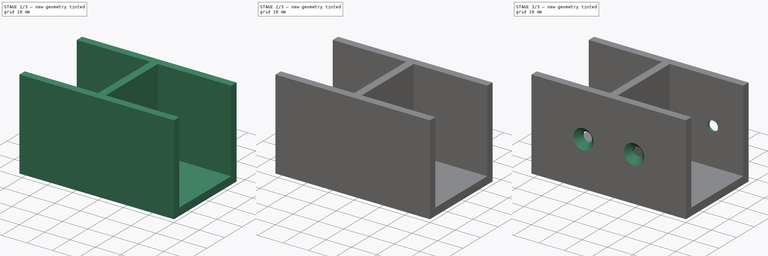
[diagram: build sequence overview — one tinted view per stage of 3, left to right]
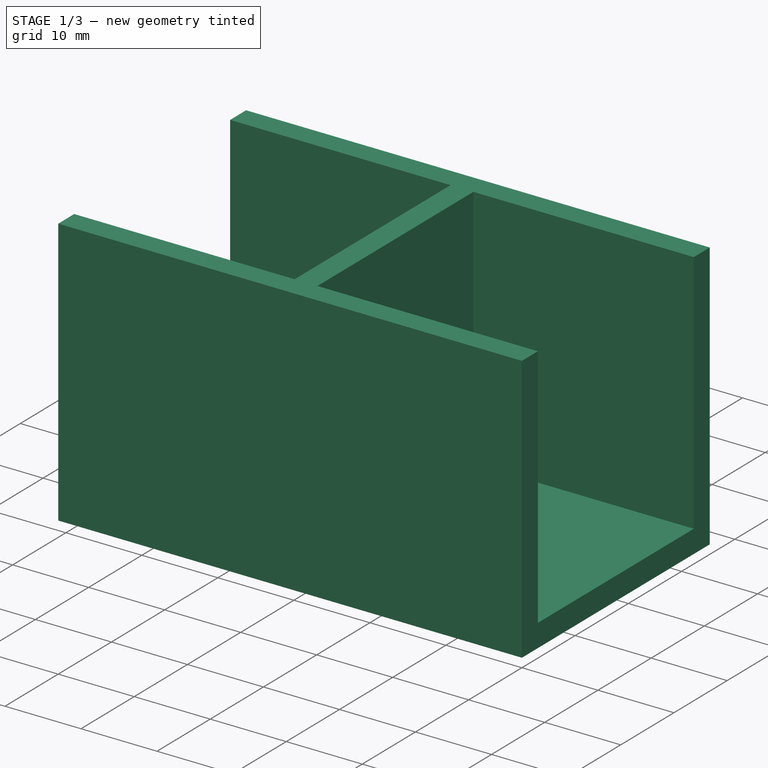
[diagram: stage 1 of 3 — iso view after this stage's code; geometry added in this stage tinted green]
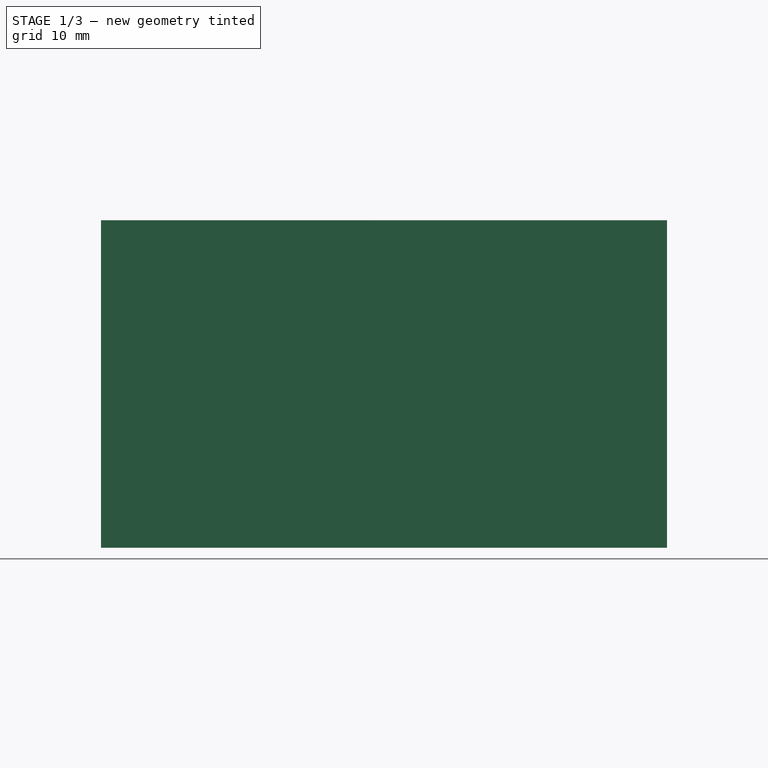
[diagram: stage 1 of 3 — front view after this stage's code; geometry added in this stage tinted green]
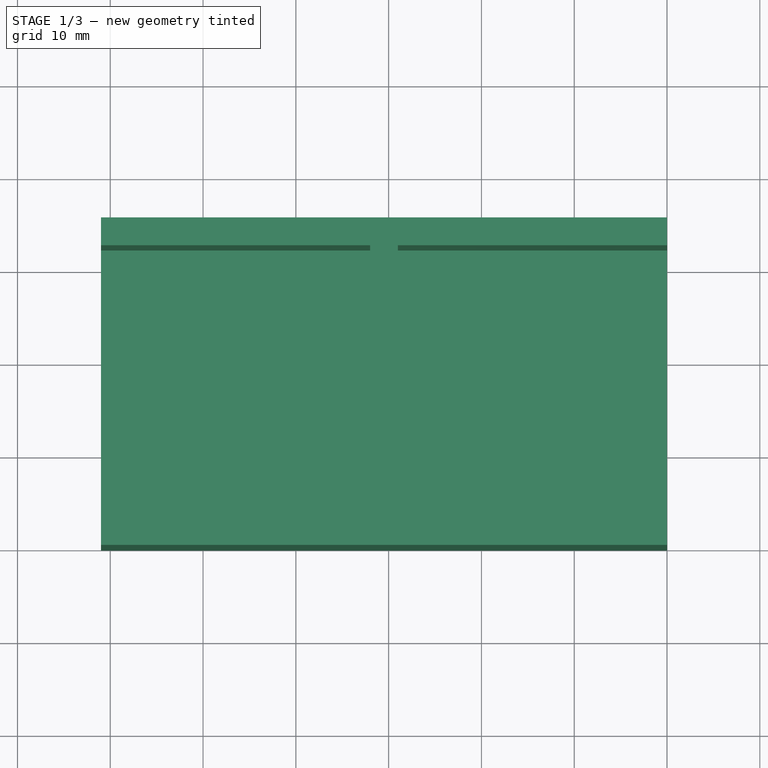
[diagram: stage 1 of 3 — top view after this stage's code; geometry added in this stage tinted green]
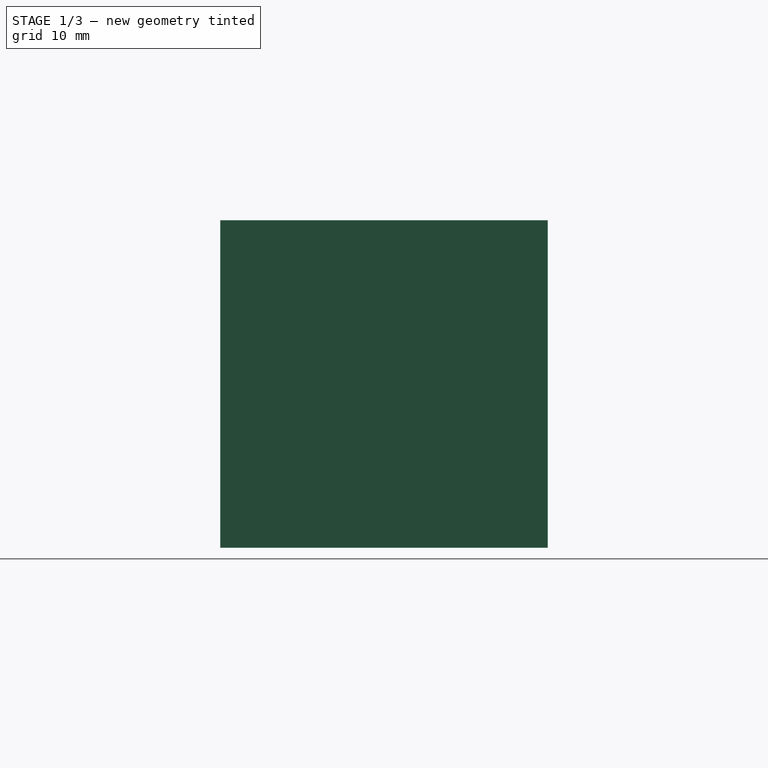
[diagram: stage 1 of 3 — right view after this stage's code; geometry added in this stage tinted green]
FCSTD DOCUMENT  (FreeCAD 1.0R39285 (Git))
Label: 29mm-wood-connector
License: All rights reserved
LicenseURL: https://en.wikipedia.org/wiki/All_rights_reserved
objects: Sketcher::SketchObject×6, PartDesign::Hole×4, App::VarSet×1, PartDesign::Pad×1, PartDesign::Pocket×1, PartDesign::Body×1
note: 31 computed .brp shape members not serialized (recipe doc carries the construction recipe); baked Part::Feature solids carry a one-line shape summary decoded from their .brp

FEATURE [App::VarSet] VarSet
  Base_CounterSinkD = 8
  Base_CounterSinkH = 6
  Base_LegHeaderHeight = 29
  Base_LegHeight = 29
  Base_LegWidth = 29.3
  Base_Screw = 3
  Base_TotalHeight = 61
  Base_TotalWidth = 35.3
  Base_WallThickness = 3
  expr: Base_TotalHeight = Base_LegHeight + Base_LegHeaderHeight + Base_WallThickness
  expr: Base_TotalWidth = Base_LegWidth + 2 * Base_WallThickness
FEATURE [Sketcher::SketchObject] Sketch
  ArcFitTolerance = 1e-06
  AttachmentSupport = -> [XY_Plane]
  FullyConstrained = true
  MakeInternals = false
  MapMode = 5
  expr: Constraints[10] = VarSet.Base_TotalWidth
  expr: Constraints[9] = VarSet.Base_TotalHeight
  sketch-geometry (4):
    g0: LineSegment StartX=0 StartY=0 StartZ=0 EndX=0 EndY=35.3 EndZ=0
    g1: LineSegment StartX=0 StartY=35.3 StartZ=0 EndX=-61 EndY=35.3 EndZ=0
    g2: LineSegment StartX=-61 StartY=35.3 StartZ=0 EndX=-61 EndY=0 EndZ=0
    g3: LineSegment StartX=-61 StartY=0 StartZ=0 EndX=0 EndY=0 EndZ=0
  constraints (11):
    c: Coincident(g0,g1)
    c: Coincident(g1,g2)
    c: Coincident(g2,g3)
    c: Coincident(g3,g0)
    c: Vertical(g0)
    c: Vertical(g2)
    c: Horizontal(g1)
    c: Horizontal(g3)
    c: Coincident(g0,g-1)
    c: DistanceX(g1,g1) = 61
    c: DistanceY(g2,g2) = 35.3
FEATURE [PartDesign::Pad] Pad
  Direction = (0,0,1)
  Length = 35.3
  Length2 = 10
  Profile = -> Sketch
  ReferenceAxis = -> Sketch [N_Axis]
  Refine = true
  Suppressed = false
  Type = 0
  expr: Length = VarSet.Base_TotalWidth
FEATURE [Sketcher::SketchObject] Sketch001
  ArcFitTolerance = 1e-06
  AttachmentSupport = -> [Pad]
  ExternalGeometry = -> [Pad]
  FullyConstrained = true
  MakeInternals = false
  MapMode = 5
  Placement = pos=(0,0,35.3) rot=(0,0,1;0rad)
  expr: Constraints[10] = VarSet.Base_WallThickness
  expr: Constraints[11] = VarSet.Base_WallThickness
  expr: Constraints[9] = VarSet.Base_LegHeaderHeight
  sketch-geometry (8):
    g0: LineSegment StartX=0 StartY=32.3 StartZ=0 EndX=-29 EndY=32.3 EndZ=0
    g1: LineSegment StartX=-29 StartY=32.3 StartZ=0 EndX=-29 EndY=3 EndZ=0
    g2: LineSegment StartX=-29 StartY=3 StartZ=0 EndX=0 EndY=3 EndZ=0
    g3: LineSegment StartX=0 StartY=3 StartZ=0 EndX=0 EndY=32.3 EndZ=0
    g4: LineSegment StartX=-61 StartY=32.3 StartZ=0 EndX=-61 EndY=3 EndZ=0
    g5: LineSegment StartX=-61 StartY=3 StartZ=0 EndX=-32 EndY=3 EndZ=0
    g6: LineSegment StartX=-32 StartY=3 StartZ=0 EndX=-32 EndY=32.3 EndZ=0
    g7: LineSegment StartX=-32 StartY=32.3 StartZ=0 EndX=-61 EndY=32.3 EndZ=0
  constraints (23):
    c: Coincident(g0,g1)
    c: Coincident(g1,g2)
    c: Coincident(g2,g3)
    c: Coincident(g3,g0)
    c: Horizontal(g0)
    c: Horizontal(g2)
    c: Vertical(g1)
    c: Vertical(g3)
    c: PointOnObject(g0,g-2)
    c: DistanceX(g0,g0) = 29
    c: Distance(g-1,g2) = 3
    c: Distance(g0,g-3) = 3
    c: Coincident(g4,g5)
    c: Coincident(g5,g6)
    c: Coincident(g6,g7)
    c: Coincident(g7,g4)
    c: Vertical(g4)
    c: Vertical(g6)
    c: Horizontal(g5)
    c: PointOnObject(g4,g-4)
    c: Equal(g6,g3)
    c: Equal(g7,g0)
    c: Tangent(g7,g0)
FEATURE [Sketcher::SketchObject] Sketch002
  ArcFitTolerance = 1e-06
  AttachmentSupport = -> [Pad]
  ExternalGeometry = -> [Pad]
  FullyConstrained = true
  MakeInternals = false
  MapMode = 5
  Placement = pos=(0,0,0) rot=(1,0,0;3.14159rad)
  expr: Constraints[0] = VarSet.Base_LegHeaderHeight / 2
  expr: Constraints[5] = VarSet.Base_Screw
  sketch-geometry (4):
    g0: Circle CenterX=-14.5 CenterY=-17.65 CenterZ=0 NormalX=0 NormalY=0 NormalZ=1 AngleXU=0 Radius=1.5
    g1: LineSegment [constr] StartX=-14.5 StartY=0 StartZ=0 EndX=-14.5 EndY=-35.3 EndZ=0
    g2: Circle CenterX=-46.5 CenterY=-17.65 CenterZ=0 NormalX=0 NormalY=0 NormalZ=1 AngleXU=0 Radius=1.5
    g3: LineSegment [constr] StartX=-46.5 StartY=0 StartZ=0 EndX=-46.5 EndY=-35.3 EndZ=0
  constraints (12):
    c: Distance(g0,g-2) = 14.5
    c: PointOnObject(g1,g-1)
    c: PointOnObject(g1,g-3)
    c: Vertical(g1)
    c: Symmetric(g1,g1,g0)
    c: Diameter(g0) = 3
    c: Equal(g2,g0)
    c: PointOnObject(g3,g-1)
    c: PointOnObject(g3,g-3)
    c: Vertical(g3)
    c: Symmetric(g3,g3,g2)
    c: DistanceX(g-4,g3) = 14.5
FEATURE [PartDesign::Pocket] Pocket
  BaseFeature = -> Pad
  Direction = (0,0,-1)
  Length = 32.3
  Length2 = 5
  Profile = -> Sketch001
  ReferenceAxis = -> Sketch001 [N_Axis]
  Refine = true
  Suppressed = false
  Type = 0
  expr: Length = VarSet.Base_LegWidth + VarSet.Base_WallThickness
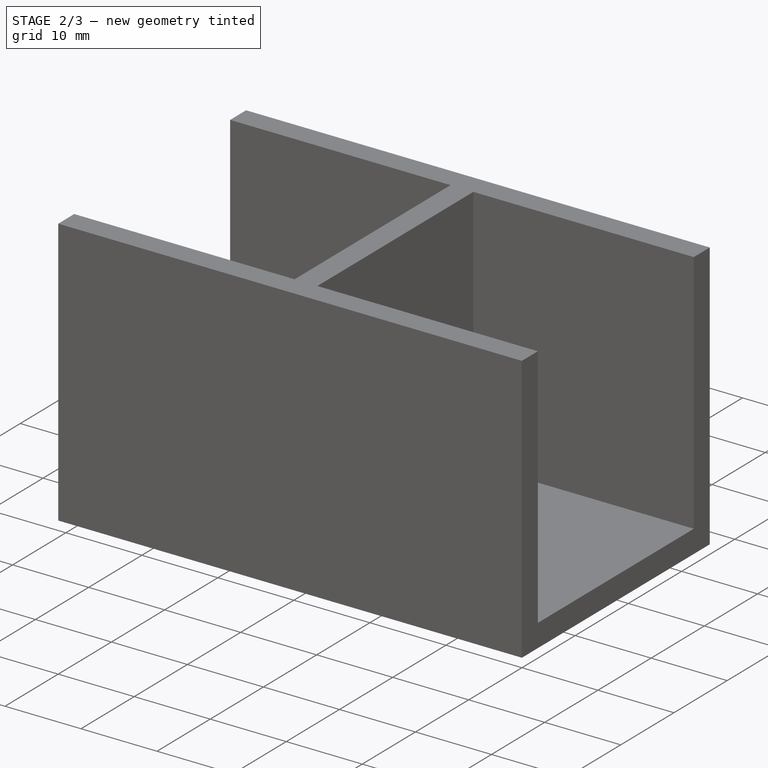
[diagram: stage 2 of 3 — iso view after this stage's code; geometry added in this stage tinted green]
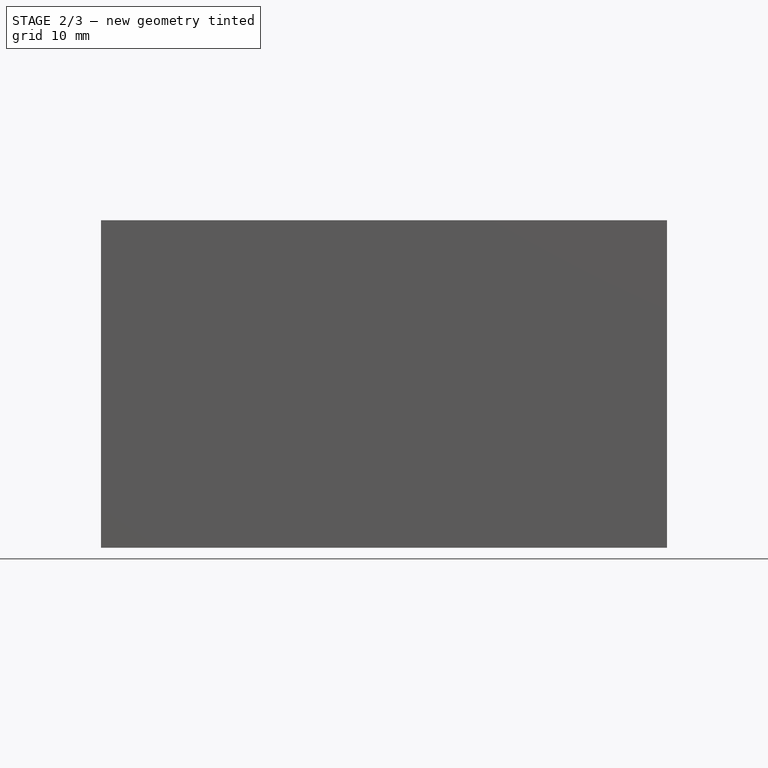
[diagram: stage 2 of 3 — front view after this stage's code; geometry added in this stage tinted green]
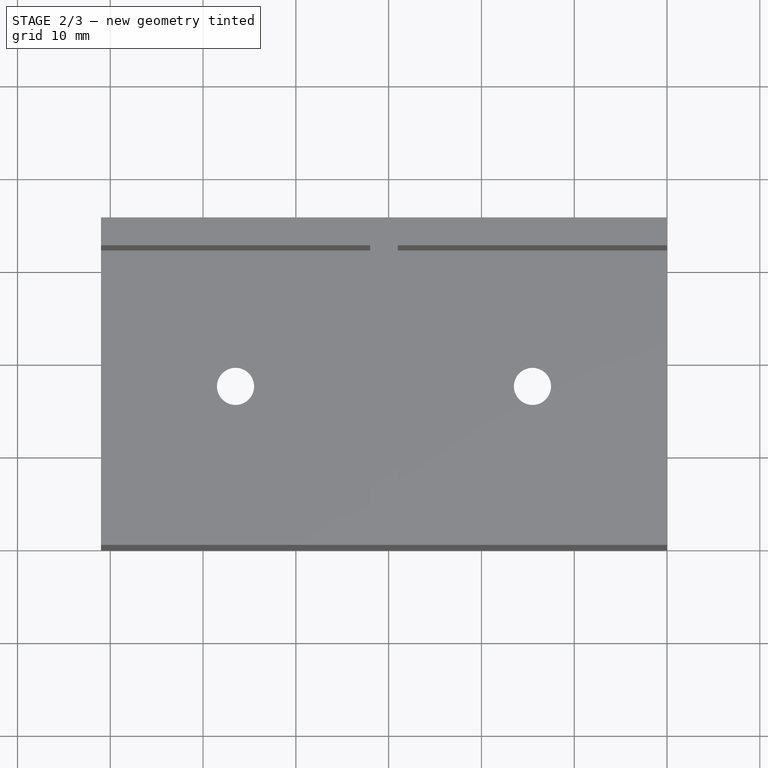
[diagram: stage 2 of 3 — top view after this stage's code; geometry added in this stage tinted green]
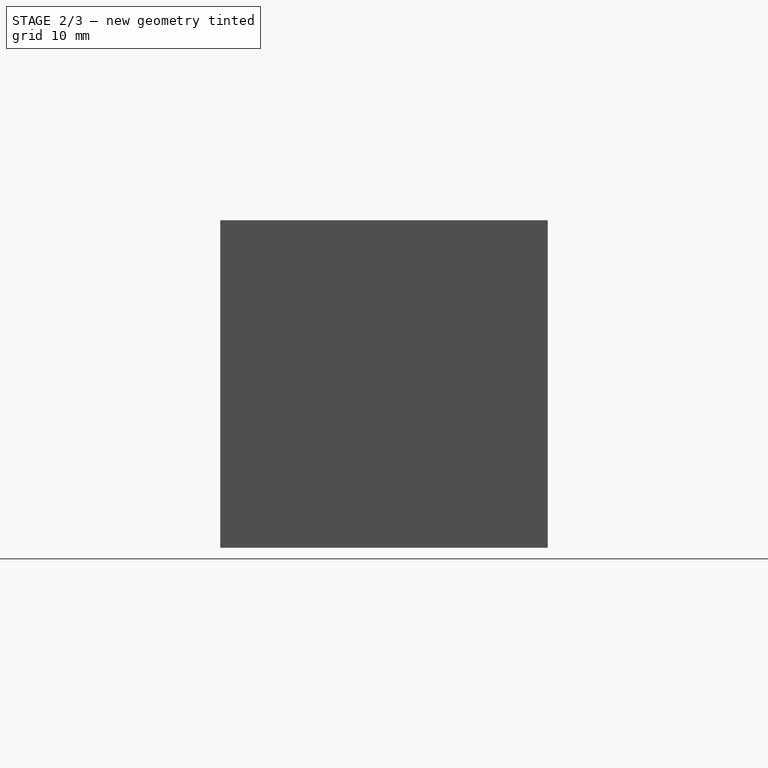
[diagram: stage 2 of 3 — right view after this stage's code; geometry added in this stage tinted green]
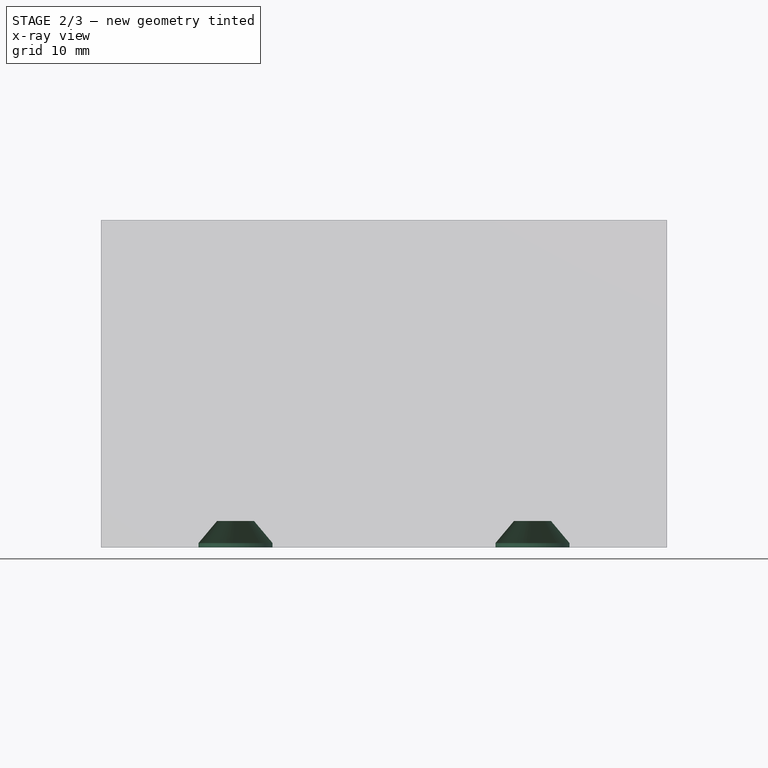
[diagram: stage 2 of 3 — x-ray composite at the front view; earlier geometry ghosted, this stage's added geometry solid]
FEATURE [Sketcher::SketchObject] Sketch004
  ArcFitTolerance = 1e-06
  FullyConstrained = true
  MakeInternals = false
  MapMode = 5
  Placement = pos=(0,0,35.3) rot=(0,0,1;0rad)
  sketch-geometry (1):
    g0: Circle CenterX=-43.65 CenterY=17.65 CenterZ=0 NormalX=0 NormalY=0 NormalZ=1 AngleXU=0 Radius=4
  constraints (2):
    c: Diameter(g0) = 8
    c: Coincident(g0,g-3)
FEATURE [PartDesign::Hole] Hole
  BaseFeature = -> Pocket
  CustomThreadClearance = 0
  Depth = 355.96
  DepthType = 0
  Diameter = 4
  DrillForDepth = false
  DrillPoint = 1
  DrillPointAngle = 118
  HoleCutCountersinkAngle = 80
  HoleCutCustomValues = false
  HoleCutDepth = 0.5
  HoleCutDiameter = 8
  HoleCutType = 3
  ModelThread = false
  Profile = -> Sketch002
  Refine = true
  Suppressed = false
  Tapered = false
  TaperedAngle = 45
  ThreadClass = 0
  ThreadDepth = 355.96
  ThreadDepthType = 0
  ThreadDirection = 0
  ThreadFit = 0
  ThreadSize = 0
  ThreadType = 0
  Threaded = false
  UseCustomThreadClearance = false
  expr: HoleCutDiameter = VarSet.Base_CounterSinkD
FEATURE [PartDesign::Hole] Hole001
  BaseFeature = -> Hole
  CustomThreadClearance = 0
  Depth = 1
  DepthType = 0
  Diameter = 8
  DrillForDepth = false
  DrillPoint = 1
  DrillPointAngle = 118
  HoleCutCountersinkAngle = 90
  HoleCutCustomValues = false
  HoleCutDepth = 0
  HoleCutDiameter = 6.1
  HoleCutType = 0
  ModelThread = false
  Profile = -> Sketch004
  Refine = true
  Suppressed = false
  Tapered = true
  TaperedAngle = 45
  ThreadClass = 0
  ThreadDepth = 1
  ThreadDepthType = 0
  ThreadDirection = 0
  ThreadFit = 0
  ThreadSize = 0
  ThreadType = 0
  Threaded = false
  UseCustomThreadClearance = false
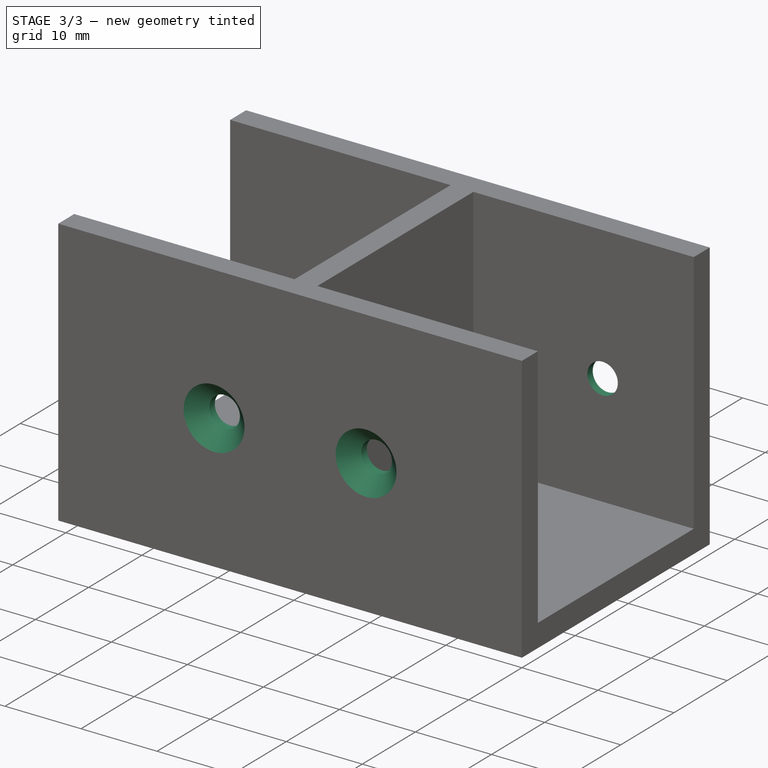
[diagram: stage 3 of 3 — iso view after this stage's code; geometry added in this stage tinted green]
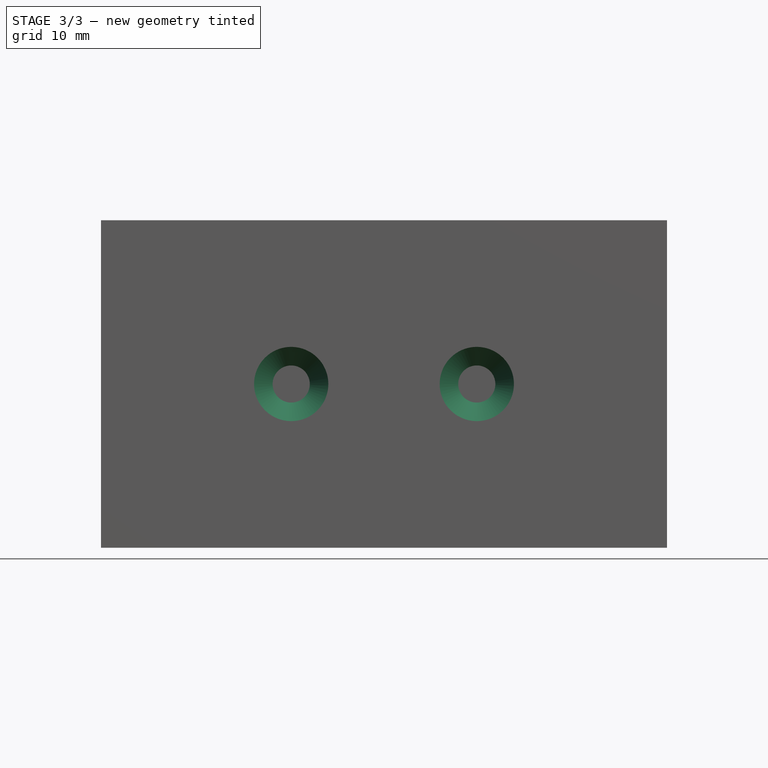
[diagram: stage 3 of 3 — front view after this stage's code; geometry added in this stage tinted green]
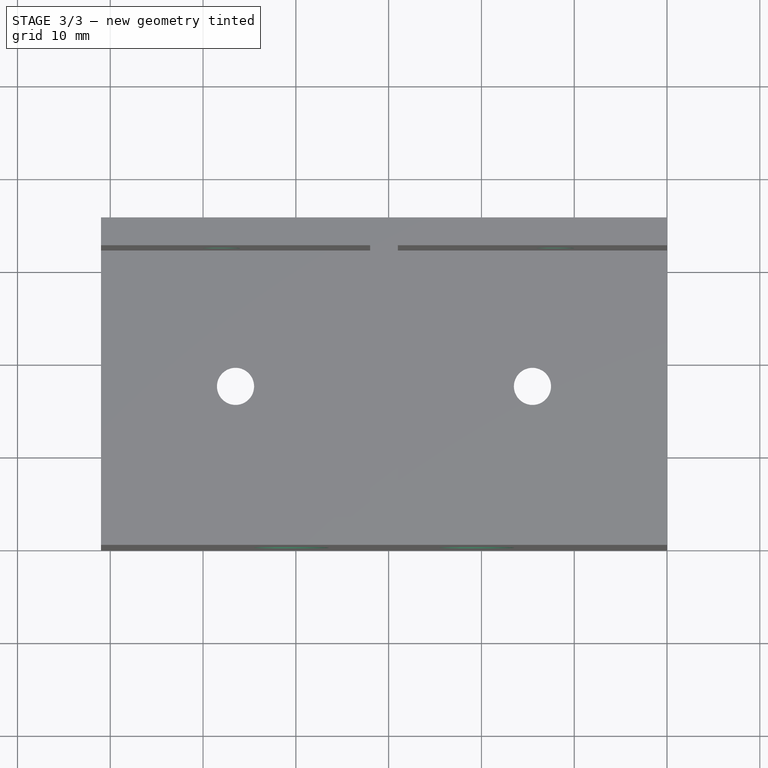
[diagram: stage 3 of 3 — top view after this stage's code; geometry added in this stage tinted green]
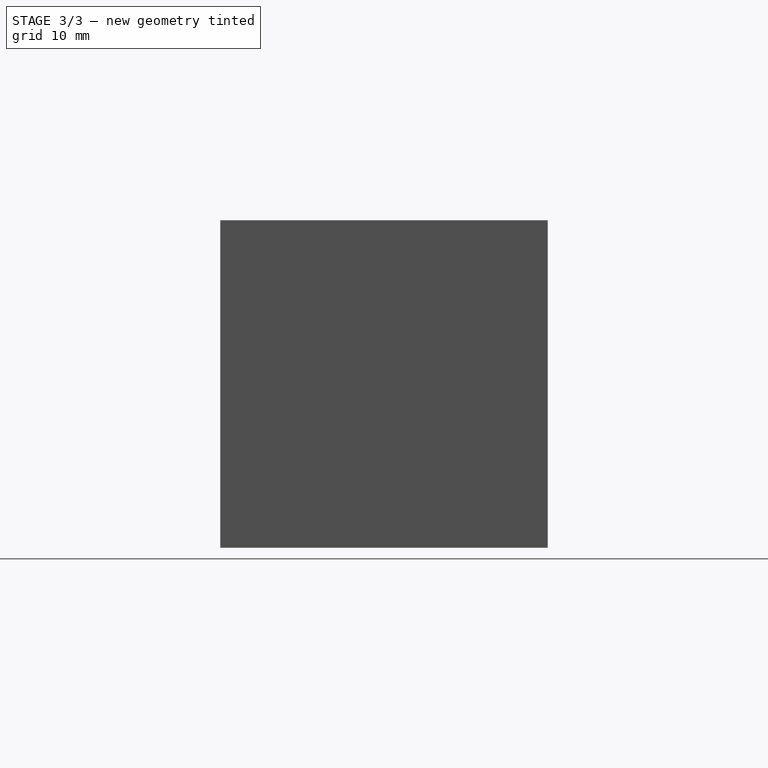
[diagram: stage 3 of 3 — right view after this stage's code; geometry added in this stage tinted green]
FEATURE [Sketcher::SketchObject] Sketch006
  ArcFitTolerance = 1e-06
  AttachmentSupport = -> [Hole001]
  ExternalGeometry = -> [Hole001]
  FullyConstrained = true
  MakeInternals = false
  MapMode = 5
  Placement = pos=(0,35.3,0) rot=(0,0.707107,0.707107;3.14159rad)
  sketch-geometry (5):
    g0: GeomPoint X=12 Y=17.65 Z=0
    g1: LineSegment [constr] StartX=12 StartY=35.3 StartZ=0 EndX=12 EndY=0 EndZ=0
    g2: Circle CenterX=12 CenterY=17.65 CenterZ=0 NormalX=0 NormalY=0 NormalZ=1 AngleXU=0 Radius=1.5
    g3: Circle CenterX=48 CenterY=17.65 CenterZ=0 NormalX=0 NormalY=0 NormalZ=1 AngleXU=0 Radius=1.5
    g4: LineSegment [constr] StartX=48 StartY=35.3 StartZ=0 EndX=48 EndY=0 EndZ=0
  constraints (13):
    c: PointOnObject(g1,g-3)
    c: PointOnObject(g1,g-4)
    c: Vertical(g1)
    c: Symmetric(g1,g1,g0)
    c: Distance(g0,g-5) = 12
    c: Diameter(g2) = 3
    c: Coincident(g2,g0)
    c: Equal(g3,g2)
    c: PointOnObject(g4,g-3)
    c: PointOnObject(g4,g-4)
    c: Vertical(g4)
    c: Symmetric(g4,g4,g3)
    c: Distance(g-4,g4) = 13
FEATURE [PartDesign::Hole] Hole002
  BaseFeature = -> Hole001
  CustomThreadClearance = 0
  Depth = 25
  DepthType = 0
  Diameter = 4
  DrillForDepth = false
  DrillPoint = 1
  DrillPointAngle = 118
  HoleCutCountersinkAngle = 90
  HoleCutCustomValues = false
  HoleCutDepth = 0
  HoleCutDiameter = 8
  HoleCutType = 2
  ModelThread = false
  Profile = -> Sketch006
  Refine = true
  Suppressed = false
  Tapered = false
  TaperedAngle = 90
  ThreadClass = 0
  ThreadDepth = 25
  ThreadDepthType = 0
  ThreadDirection = 0
  ThreadFit = 0
  ThreadSize = 0
  ThreadType = 0
  Threaded = false
  UseCustomThreadClearance = false
FEATURE [Sketcher::SketchObject] Sketch007
  ArcFitTolerance = 1e-06
  AttachmentSupport = -> [Hole002]
  ExternalGeometry = -> [Hole002]
  FullyConstrained = true
  MakeInternals = false
  MapMode = 5
  Placement = pos=(0,0,0) rot=(1,0,0;1.5708rad)
  sketch-geometry (4):
    g0: LineSegment [constr] StartX=-30.5 StartY=35.3 StartZ=0 EndX=-30.5 EndY=0 EndZ=0
    g1: Circle CenterX=-20.5 CenterY=17.65 CenterZ=0 NormalX=0 NormalY=0 NormalZ=1 AngleXU=0 Radius=1.5
    g2: Circle CenterX=-40.5 CenterY=17.65 CenterZ=0 NormalX=0 NormalY=0 NormalZ=1 AngleXU=0 Radius=1.5
    g3: LineSegment [constr] StartX=-20.5 StartY=35.3 StartZ=0 EndX=-20.5 EndY=0 EndZ=0
  constraints (10):
    c: Symmetric(g-3,g-3,g0)
    c: Symmetric(g-4,g-4,g0)
    c: Diameter(g1) = 3
    c: Equal(g2,g1)
    c: Symmetric(g1,g2,g0)
    c: PointOnObject(g3,g-3)
    c: PointOnObject(g3,g-4)
    c: Vertical(g3)
    c: Symmetric(g3,g3,g1)
    c: Distance(g3,g0) = 10
FEATURE [PartDesign::Hole] Hole003
  BaseFeature = -> Hole002
  CustomThreadClearance = 0
  Depth = 25
  DepthType = 0
  Diameter = 4
  DrillForDepth = false
  DrillPoint = 1
  DrillPointAngle = 118
  HoleCutCountersinkAngle = 90
  HoleCutCustomValues = false
  HoleCutDepth = 0
  HoleCutDiameter = 8
  HoleCutType = 2
  ModelThread = false
  Profile = -> Sketch007
  Refine = true
  Suppressed = false
  Tapered = false
  TaperedAngle = 90
  ThreadClass = 0
  ThreadDepth = 25
  ThreadDepthType = 0
  ThreadDirection = 0
  ThreadFit = 0
  ThreadSize = 0
  ThreadType = 0
  Threaded = false
  UseCustomThreadClearance = false
FEATURE [PartDesign::Body] Body
  AllowCompound = false
  Group = -> [Sketch,Pad,Sketch001,Sketch002,Pocket,Hole,Sketch004,Hole001,Sketch006,Hole002,Sketch007,Hole003]
  Origin = -> Origin
  Tip = -> Hole003
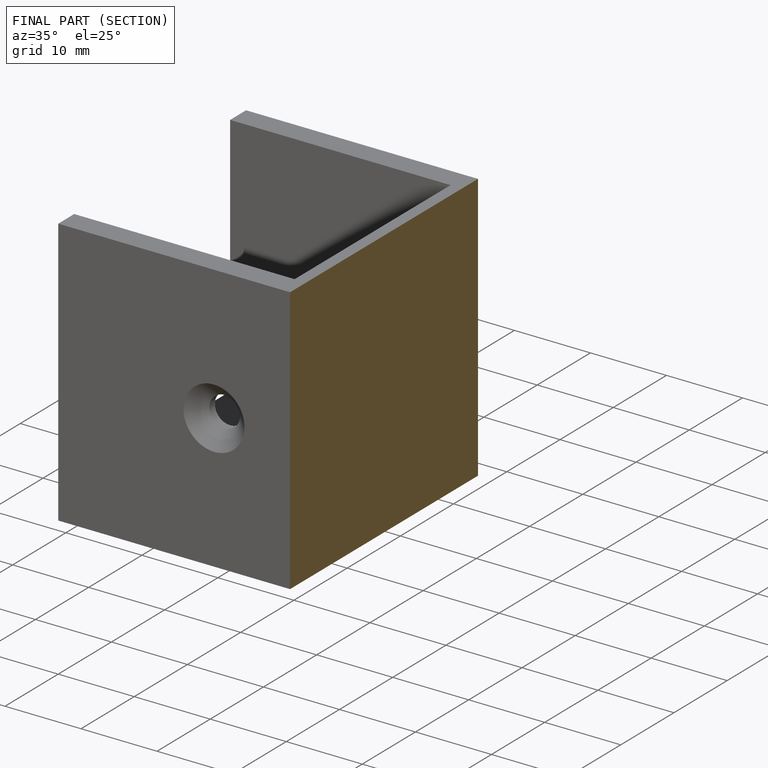
[diagram: finished part — half-section view (interior)]
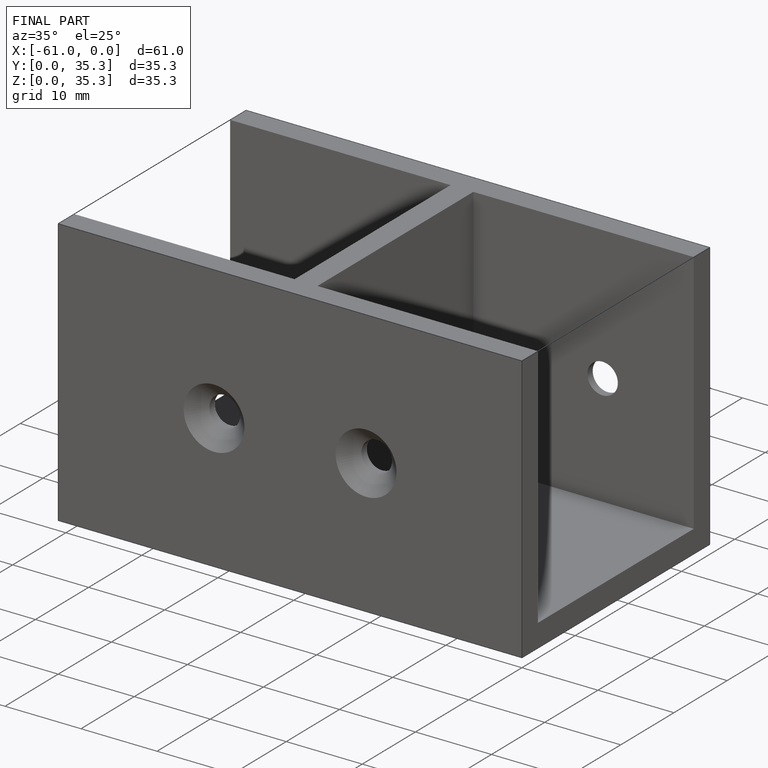
[diagram: finished part — iso view with bounding-box wireframe]
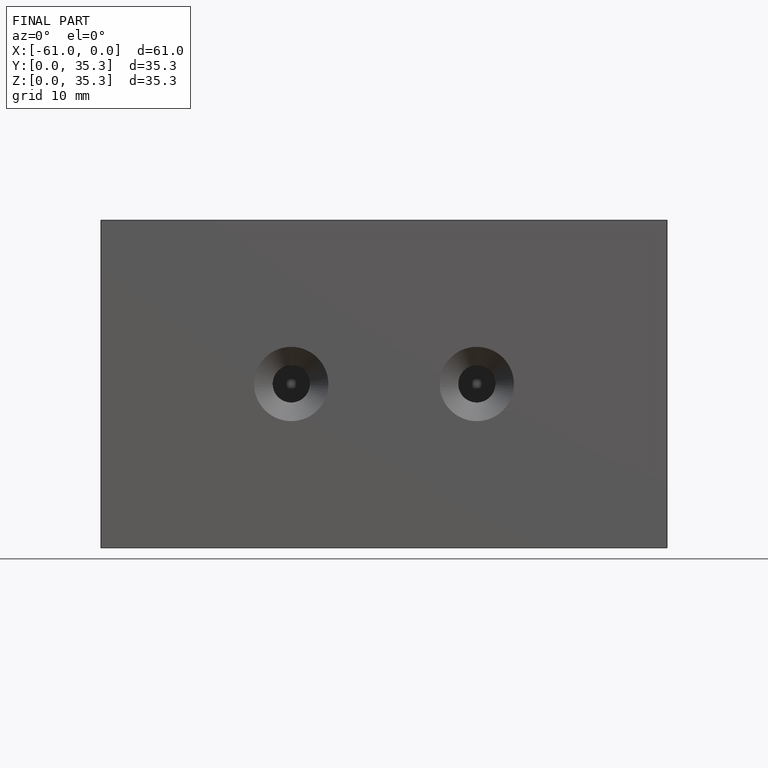
[diagram: finished part — front view with bounding-box wireframe]
